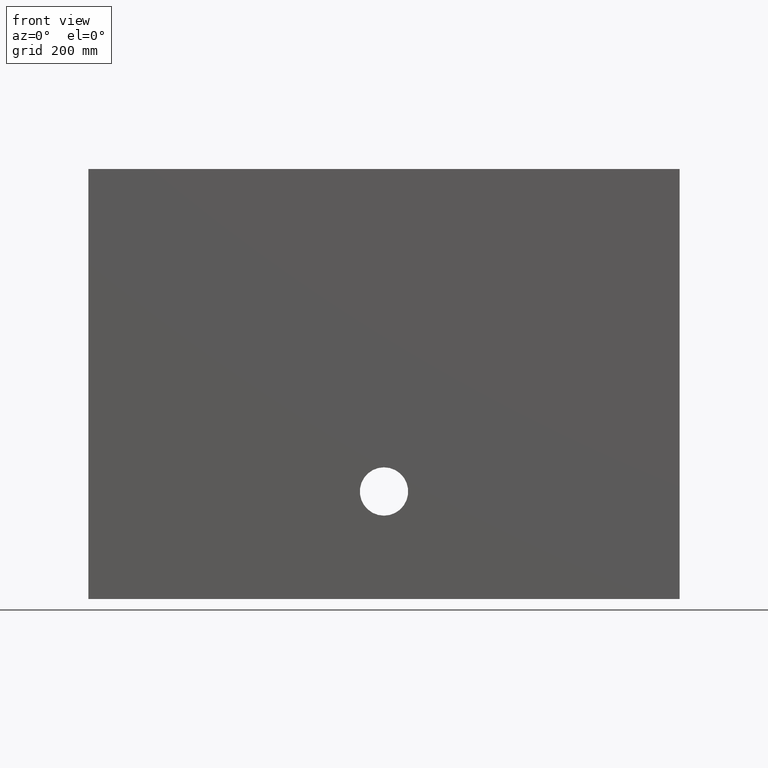
[diagram: clean part render]
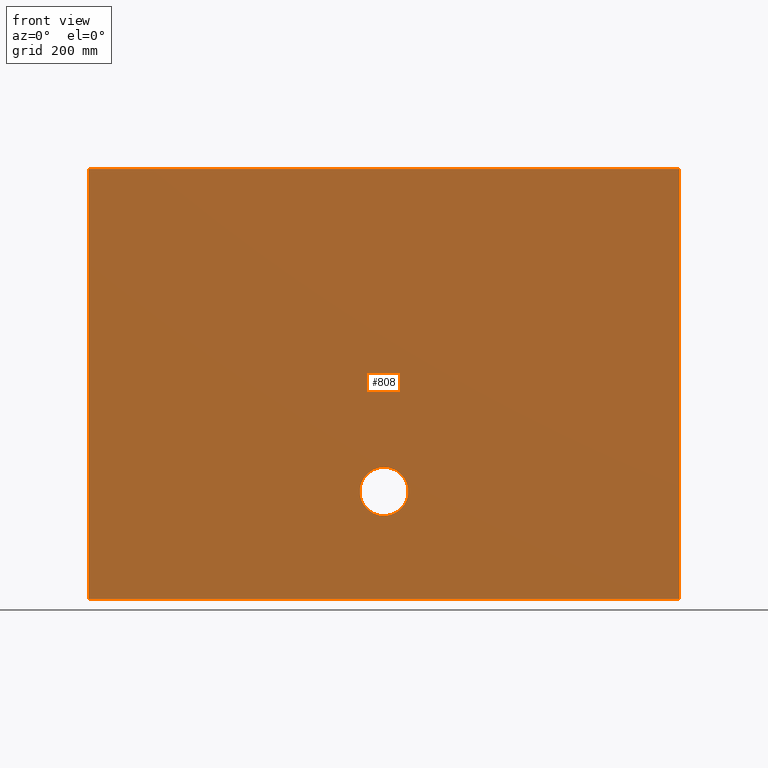
[diagram: same view with one face highlighted and labeled with its STEP entity id]
A machine part, front view. The second image highlights one B-rep face of the part: STEP entity #808.
In plain terms, the highlighted planar face has unit normal (0, 1, 0).
Its self-contained STEP definition (entity closure, byte-faithful):
#32 = ORIENTED_EDGE ( 'NONE', *, *, #775, .F. ) ;
#132 = LINE ( 'NONE', #765, #963 ) ;
#158 = PLANE ( 'NONE',  #169 ) ;
#169 = AXIS2_PLACEMENT_3D ( 'NONE', #931, #317, #259 ) ;
#174 = DIRECTION ( 'NONE',  ( -0.0000000000000000000, -0.0000000000000000000, -1.000000000000000000 ) ) ;
#175 = CARTESIAN_POINT ( 'NONE',  ( 550.0000000000000000, 0.0000000000000000000, -399.9999999999999400 ) ) ;
#188 = CARTESIAN_POINT ( 'NONE',  ( -550.0000000000000000, 0.0000000000000000000, -399.9999999999999400 ) ) ;
#194 = ORIENTED_EDGE ( 'NONE', *, *, #917, .T. ) ;
#259 = DIRECTION ( 'NONE',  ( 0.0000000000000000000, -0.0000000000000000000, 1.000000000000000000 ) ) ;
#264 = CARTESIAN_POINT ( 'NONE',  ( -1.071565949253933500E-014, 0.0000000000000000000, -199.9999999999999400 ) ) ;
#292 = EDGE_CURVE ( 'NONE', #511, #937, #473, .T. ) ;
#317 = DIRECTION ( 'NONE',  ( 0.0000000000000000000, 1.000000000000000000, 0.0000000000000000000 ) ) ;
#319 = CARTESIAN_POINT ( 'NONE',  ( 550.0000000000000000, 0.0000000000000000000, -399.9999999999999400 ) ) ;
#324 = VERTEX_POINT ( 'NONE', #751 ) ;
#361 = VECTOR ( 'NONE', #792, 1000.000000000000000 ) ;
#362 = DIRECTION ( 'NONE',  ( 0.0000000000000000000, 0.0000000000000000000, 1.000000000000000000 ) ) ;
#378 = VERTEX_POINT ( 'NONE', #901 ) ;
#389 = CARTESIAN_POINT ( 'NONE',  ( -550.0000000000000000, 0.0000000000000000000, 400.0000000000000600 ) ) ;
#390 = LINE ( 'NONE', #389, #772 ) ;
#462 = LINE ( 'NONE', #175, #779 ) ;
#470 = EDGE_LOOP ( 'NONE', ( #32, #1002, #481, #597 ) ) ;
#473 = LINE ( 'NONE', #188, #361 ) ;
#477 = FACE_BOUND ( 'NONE', #589, .T. ) ;
#481 = ORIENTED_EDGE ( 'NONE', *, *, #490, .F. ) ;
#490 = EDGE_CURVE ( 'NONE', #324, #511, #462, .T. ) ;
#505 = CIRCLE ( 'NONE', #814, 44.99999999999998600 ) ;
#511 = VERTEX_POINT ( 'NONE', #319 ) ;
#535 = DIRECTION ( 'NONE',  ( 0.0000000000000000000, 1.000000000000000000, 0.0000000000000000000 ) ) ;
#542 = FACE_OUTER_BOUND ( 'NONE', #470, .T. ) ;
#545 = DIRECTION ( 'NONE',  ( 0.0000000000000000000, 1.000000000000000000, 0.0000000000000000000 ) ) ;
#589 = EDGE_LOOP ( 'NONE', ( #194, #606 ) ) ;
#597 = ORIENTED_EDGE ( 'NONE', *, *, #833, .F. ) ;
#606 = ORIENTED_EDGE ( 'NONE', *, *, #663, .T. ) ;
#635 = AXIS2_PLACEMENT_3D ( 'NONE', #726, #535, #756 ) ;
#650 = VERTEX_POINT ( 'NONE', #842 ) ;
#663 = EDGE_CURVE ( 'NONE', #378, #983, #977, .T. ) ;
#668 = CARTESIAN_POINT ( 'NONE',  ( -1.071565949253933500E-014, 0.0000000000000000000, -154.9999999999999700 ) ) ;
#702 = CARTESIAN_POINT ( 'NONE',  ( -550.0000000000000000, 0.0000000000000000000, -399.9999999999999400 ) ) ;
#726 = CARTESIAN_POINT ( 'NONE',  ( -1.071565949253933500E-014, 0.0000000000000000000, -199.9999999999999400 ) ) ;
#751 = CARTESIAN_POINT ( 'NONE',  ( 550.0000000000000000, 0.0000000000000000000, 400.0000000000000600 ) ) ;
#756 = DIRECTION ( 'NONE',  ( 0.0000000000000000000, 0.0000000000000000000, 1.000000000000000000 ) ) ;
#765 = CARTESIAN_POINT ( 'NONE',  ( -550.0000000000000000, 0.0000000000000000000, -399.9999999999999400 ) ) ;
#772 = VECTOR ( 'NONE', #946, 1000.000000000000000 ) ;
#775 = EDGE_CURVE ( 'NONE', #937, #650, #132, .T. ) ;
#779 = VECTOR ( 'NONE', #174, 1000.000000000000000 ) ;
#792 = DIRECTION ( 'NONE',  ( -1.000000000000000000, -0.0000000000000000000, -0.0000000000000000000 ) ) ;
#808 = ADVANCED_FACE ( 'NONE', ( #477, #542 ), #158, .F. ) ;
#814 = AXIS2_PLACEMENT_3D ( 'NONE', #264, #545, #900 ) ;
#833 = EDGE_CURVE ( 'NONE', #650, #324, #390, .T. ) ;
#842 = CARTESIAN_POINT ( 'NONE',  ( -550.0000000000000000, 0.0000000000000000000, 400.0000000000000600 ) ) ;
#900 = DIRECTION ( 'NONE',  ( 0.0000000000000000000, 0.0000000000000000000, 1.000000000000000000 ) ) ;
#901 = CARTESIAN_POINT ( 'NONE',  ( -5.204748896376251700E-015, 0.0000000000000000000, -244.9999999999999400 ) ) ;
#917 = EDGE_CURVE ( 'NONE', #983, #378, #505, .T. ) ;
#931 = CARTESIAN_POINT ( 'NONE',  ( -550.0000000000000000, 0.0000000000000000000, 400.0000000000000600 ) ) ;
#937 = VERTEX_POINT ( 'NONE', #702 ) ;
#946 = DIRECTION ( 'NONE',  ( 1.000000000000000000, 0.0000000000000000000, 0.0000000000000000000 ) ) ;
#963 = VECTOR ( 'NONE', #362, 1000.000000000000000 ) ;
#977 = CIRCLE ( 'NONE', #635, 44.99999999999998600 ) ;
#983 = VERTEX_POINT ( 'NONE', #668 ) ;
#1002 = ORIENTED_EDGE ( 'NONE', *, *, #292, .F. ) ;